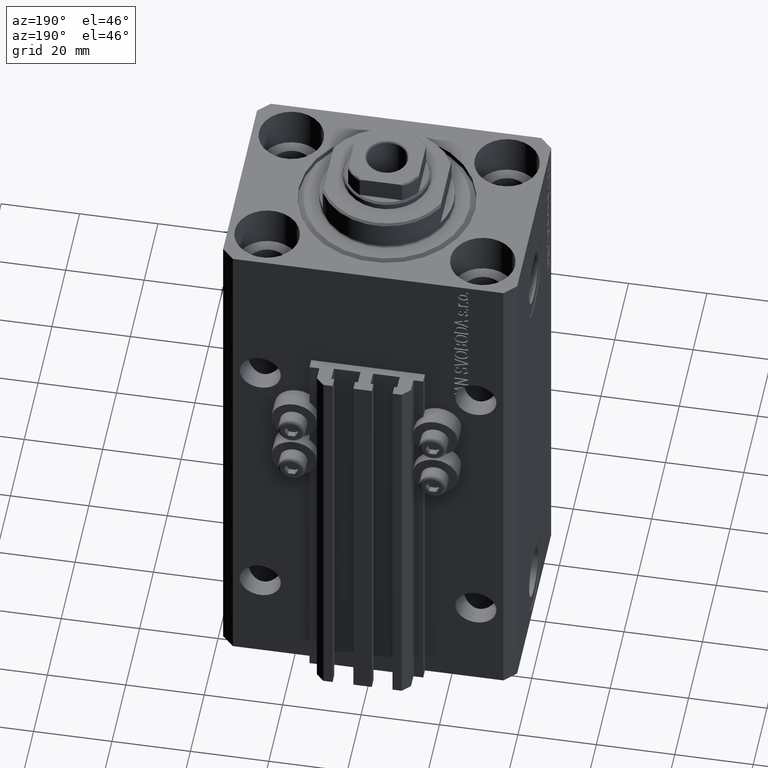
[diagram: clean part render]
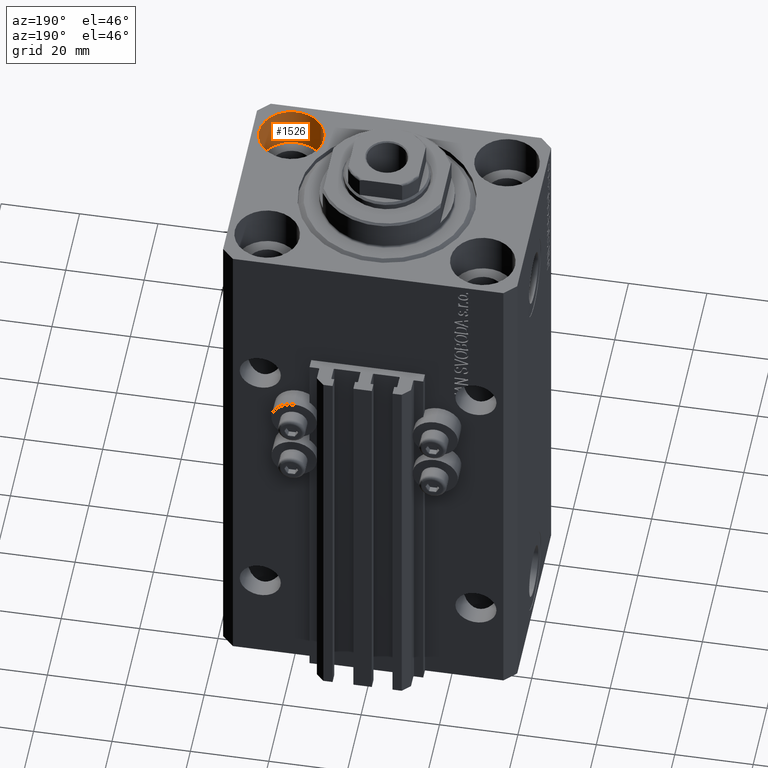
[diagram: same view with one face highlighted and labeled with its STEP entity id]
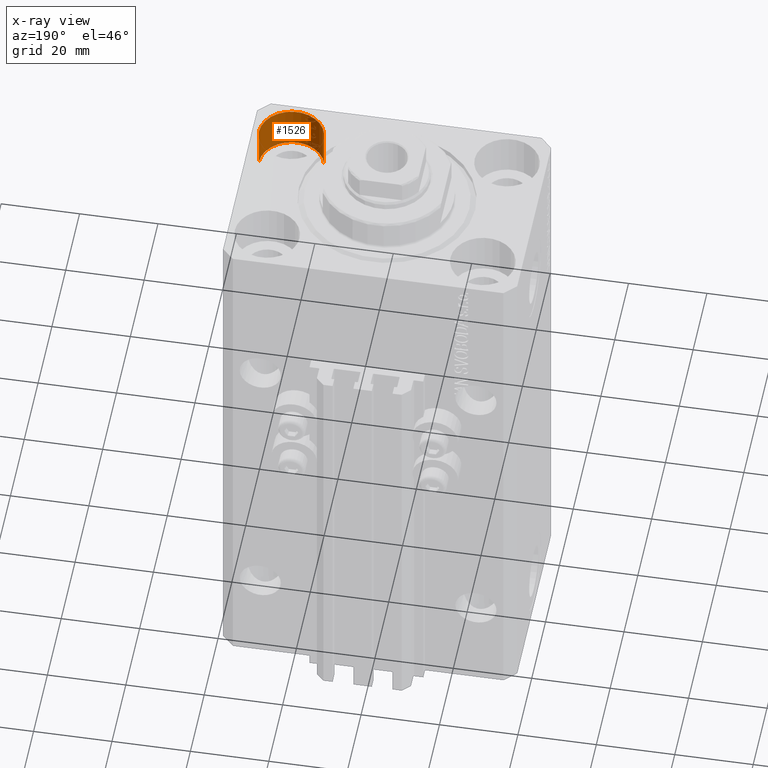
[diagram: x-ray of the same camera — body ghosted, the highlighted face saturated]
A machine part, auxiliary view. The second image highlights one B-rep face of the part: STEP entity #1526.
The next image is the same camera in x-ray: the body ghosted, the highlighted face saturated — about 0% of this face is hidden behind the body in this view.
In plain terms, the highlighted cylindrical surface (edge-blend (fillet) strip) has radius 8.25 mm, axis along (0, 0, 1).
Its self-contained STEP definition (entity closure, byte-faithful):
#955 = CARTESIAN_POINT ( 'NONE',  ( 19.25000000000000000, -17.50000000000000000, -11.00000000000000000 ) ) ;
#1216 = EDGE_LOOP ( 'NONE', ( #20368, #18769, #10800, #21364 ) ) ;
#1526 = ADVANCED_FACE ( 'NONE', ( #41150 ), #32949, .F. ) ;
#1891 = CARTESIAN_POINT ( 'NONE',  ( 27.50000000000000355, -17.50000000000000000, 0.000000000000000000 ) ) ;
#1980 = DIRECTION ( 'NONE',  ( 0.000000000000000000, 0.000000000000000000, 1.000000000000000000 ) ) ;
#4361 = DIRECTION ( 'NONE',  ( -0.000000000000000000, -0.000000000000000000, 1.000000000000000000 ) ) ;
#5098 = CIRCLE ( 'NONE', #12847, 8.250000000000000000 ) ;
#6614 = CIRCLE ( 'NONE', #10473, 8.250000000000000000 ) ;
#9185 = VERTEX_POINT ( 'NONE', #29637 ) ;
#9667 = CARTESIAN_POINT ( 'NONE',  ( 19.25000000000000000, -17.50000000000000000, -11.00000000000000000 ) ) ;
#10473 = AXIS2_PLACEMENT_3D ( 'NONE', #12624, #1980, #42166 ) ;
#10500 = VERTEX_POINT ( 'NONE', #23744 ) ;
#10800 = ORIENTED_EDGE ( 'NONE', *, *, #45347, .T. ) ;
#11839 = DIRECTION ( 'NONE',  ( -0.000000000000000000, -0.000000000000000000, 1.000000000000000000 ) ) ;
#12214 = EDGE_CURVE ( 'NONE', #23155, #9185, #43078, .T. ) ;
#12624 = CARTESIAN_POINT ( 'NONE',  ( 27.50000000000000355, -17.50000000000000000, -11.00000000000000000 ) ) ;
#12847 = AXIS2_PLACEMENT_3D ( 'NONE', #1891, #41352, #45000 ) ;
#14940 = VECTOR ( 'NONE', #46480, 1000.000000000000000 ) ;
#16368 = AXIS2_PLACEMENT_3D ( 'NONE', #33186, #11839, #29794 ) ;
#16455 = CARTESIAN_POINT ( 'NONE',  ( 35.75000000000000711, -17.50000000000000000, -11.00000000000000000 ) ) ;
#18667 = LINE ( 'NONE', #19140, #35059 ) ;
#18769 = ORIENTED_EDGE ( 'NONE', *, *, #12214, .T. ) ;
#19140 = CARTESIAN_POINT ( 'NONE',  ( 35.75000000000000711, -17.50000000000000000, -11.00000000000000000 ) ) ;
#20368 = ORIENTED_EDGE ( 'NONE', *, *, #40488, .F. ) ;
#21364 = ORIENTED_EDGE ( 'NONE', *, *, #36341, .F. ) ;
#23155 = VERTEX_POINT ( 'NONE', #955 ) ;
#23744 = CARTESIAN_POINT ( 'NONE',  ( 35.75000000000000711, -17.50000000000000000, 0.000000000000000000 ) ) ;
#29637 = CARTESIAN_POINT ( 'NONE',  ( 19.25000000000000000, -17.50000000000000000, 0.000000000000000000 ) ) ;
#29794 = DIRECTION ( 'NONE',  ( 1.000000000000000000, 0.000000000000000000, 0.000000000000000000 ) ) ;
#30684 = VERTEX_POINT ( 'NONE', #16455 ) ;
#32949 = CYLINDRICAL_SURFACE ( 'NONE', #16368, 8.250000000000000000 ) ;
#33186 = CARTESIAN_POINT ( 'NONE',  ( 27.50000000000000355, -17.50000000000000000, -11.00000000000000000 ) ) ;
#35059 = VECTOR ( 'NONE', #4361, 1000.000000000000000 ) ;
#36341 = EDGE_CURVE ( 'NONE', #30684, #10500, #18667, .T. ) ;
#40488 = EDGE_CURVE ( 'NONE', #23155, #30684, #6614, .T. ) ;
#41150 = FACE_OUTER_BOUND ( 'NONE', #1216, .T. ) ;
#41352 = DIRECTION ( 'NONE',  ( 0.000000000000000000, 0.000000000000000000, 1.000000000000000000 ) ) ;
#42166 = DIRECTION ( 'NONE',  ( 1.000000000000000000, 0.000000000000000000, 0.000000000000000000 ) ) ;
#43078 = LINE ( 'NONE', #9667, #14940 ) ;
#45000 = DIRECTION ( 'NONE',  ( 1.000000000000000000, 0.000000000000000000, 0.000000000000000000 ) ) ;
#45347 = EDGE_CURVE ( 'NONE', #9185, #10500, #5098, .T. ) ;
#46480 = DIRECTION ( 'NONE',  ( -0.000000000000000000, -0.000000000000000000, 1.000000000000000000 ) ) ;